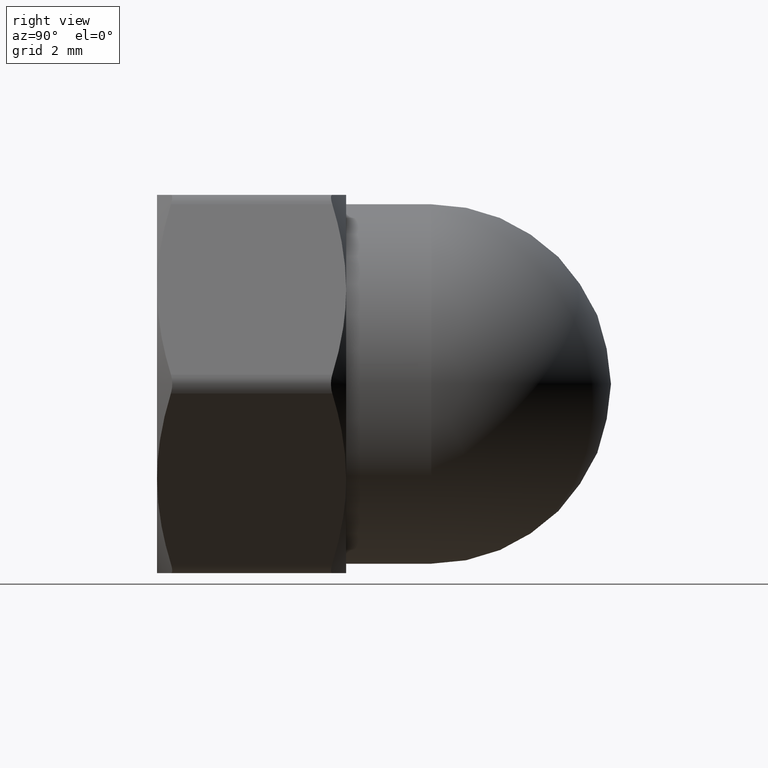
[diagram: clean part render]
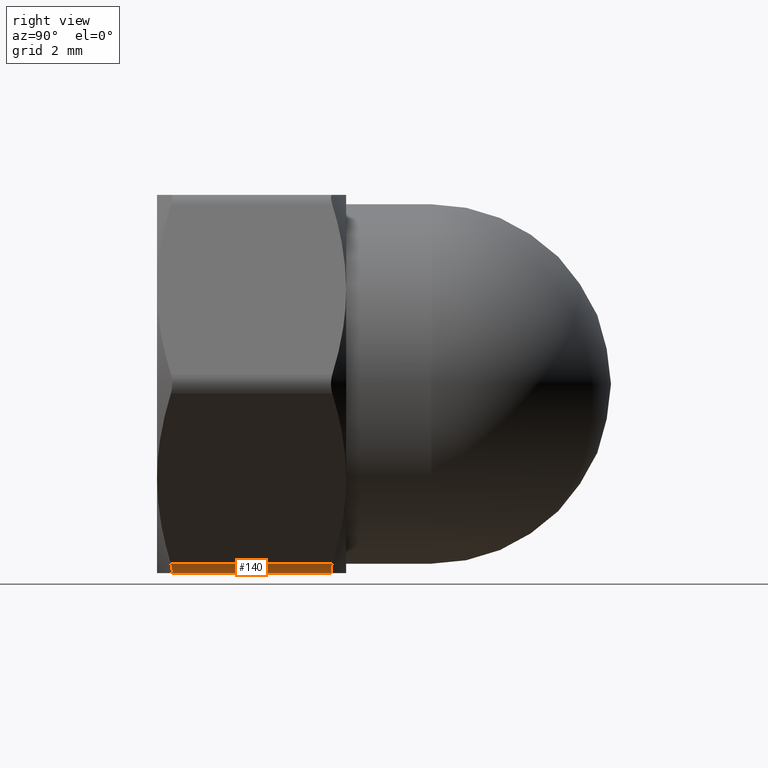
[diagram: same view with one face highlighted and labeled with its STEP entity id]
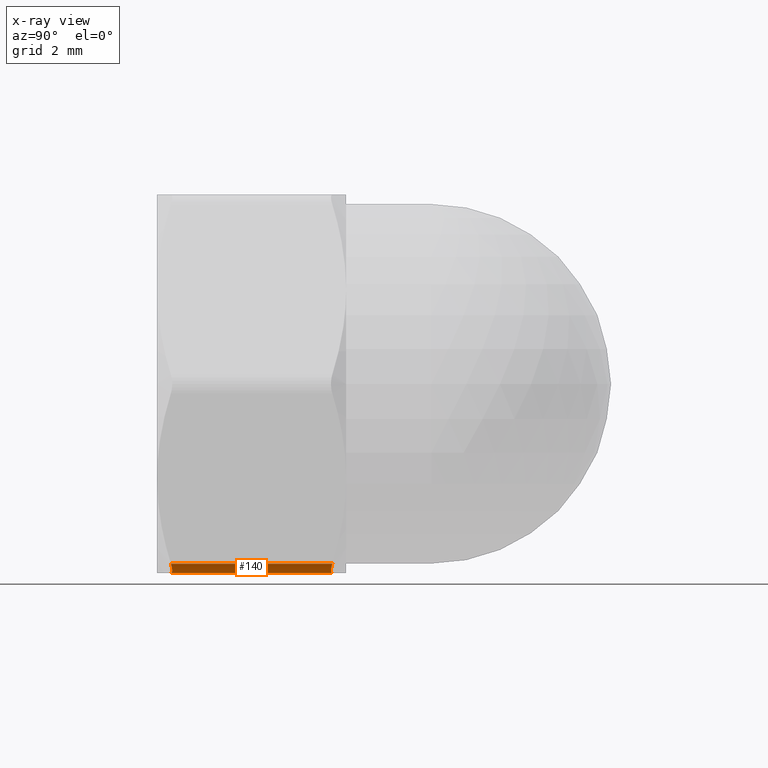
[diagram: x-ray of the same camera — body ghosted, the highlighted face saturated]
A machine part, right view. The second image highlights one B-rep face of the part: STEP entity #140.
The next image is the same camera in x-ray: the body ghosted, the highlighted face saturated — about 0% of this face is hidden behind the body in this view.
In plain terms, the highlighted cylindrical surface (edge-blend (fillet) strip) has radius 0.5 mm, axis along (0, -1, 0).
Its self-contained STEP definition (entity closure, byte-faithful):
#11 = VERTEX_POINT ( 'NONE', #628 ) ;
#21 = AXIS2_PLACEMENT_3D ( 'NONE', #955, #355, #352 ) ;
#61 = VECTOR ( 'NONE', #403, 1000.000000000000000 ) ;
#76 = CARTESIAN_POINT ( 'NONE',  ( 2.598076211353312900, 4.633547796624279500, -4.999999999999999100 ) ) ;
#115 = LINE ( 'NONE', #224, #1197 ) ;
#129 = VERTEX_POINT ( 'NONE', #737 ) ;
#140 = ADVANCED_FACE ( 'NONE', ( #633 ), #906, .T. ) ;
#163 = CARTESIAN_POINT ( 'NONE',  ( 2.772296152499846000, 4.598035946016533900, -4.976852619009042300 ) ) ;
#172 = CARTESIAN_POINT ( 'NONE',  ( 2.988064056856177200, 0.3893592352059666600, -4.824521237254662000 ) ) ;
#178 = CARTESIAN_POINT ( 'NONE',  ( 2.684097962339600400, 0.3893517915824357700, -4.999999999999999100 ) ) ;
#189 = EDGE_CURVE ( 'NONE', #11, #129, #958, .T. ) ;
#224 = CARTESIAN_POINT ( 'NONE',  ( 3.031088913245532500, 5.000000000000000000, -4.750000000000000000 ) ) ;
#330 = ORIENTED_EDGE ( 'NONE', *, *, #1168, .F. ) ;
#352 = DIRECTION ( 'NONE',  ( 0.0000000000000000000, 0.0000000000000000000, -1.000000000000000000 ) ) ;
#355 = DIRECTION ( 'NONE',  ( 0.0000000000000000000, -1.000000000000000000, 0.0000000000000000000 ) ) ;
#357 = CARTESIAN_POINT ( 'NONE',  ( 2.924610477303248900, 4.598116676514346900, -4.888736905000570200 ) ) ;
#376 = ORIENTED_EDGE ( 'NONE', *, *, #189, .F. ) ;
#389 = ORIENTED_EDGE ( 'NONE', *, *, #534, .F. ) ;
#403 = DIRECTION ( 'NONE',  ( 0.0000000000000000000, -1.000000000000000000, 0.0000000000000000000 ) ) ;
#413 = VERTEX_POINT ( 'NONE', #1284 ) ;
#500 = LINE ( 'NONE', #1010, #61 ) ;
#534 = EDGE_CURVE ( 'NONE', #413, #11, #500, .T. ) ;
#552 = CARTESIAN_POINT ( 'NONE',  ( 2.598076211353313800, 0.3664522033757202600, -4.999999999999999100 ) ) ;
#606 = ORIENTED_EDGE ( 'NONE', *, *, #1093, .F. ) ;
#628 = CARTESIAN_POINT ( 'NONE',  ( 2.598076211353313800, 0.3664522033757202600, -4.999999999999999100 ) ) ;
#633 = FACE_OUTER_BOUND ( 'NONE', #888, .T. ) ;
#667 = CARTESIAN_POINT ( 'NONE',  ( 2.771465113497938200, 0.4018833234856941100, -4.977155422018797500 ) ) ;
#737 = CARTESIAN_POINT ( 'NONE',  ( 3.031088913245470400, 0.3664522033757524100, -4.750000000000108400 ) ) ;
#742 = CARTESIAN_POINT ( 'NONE',  ( 2.988078037752468100, 4.610648208421828500, -4.824497021632007300 ) ) ;
#859 = CARTESIAN_POINT ( 'NONE',  ( 2.684125924131984100, 4.610640764794019300, -5.000000000000000000 ) ) ;
#888 = EDGE_LOOP ( 'NONE', ( #330, #606, #376, #389 ) ) ;
#900 = DIRECTION ( 'NONE',  ( -0.0000000000000000000, 1.000000000000000000, -0.0000000000000000000 ) ) ;
#906 = CYLINDRICAL_SURFACE ( 'NONE', #21, 0.5000000000000004400 ) ;
#955 = CARTESIAN_POINT ( 'NONE',  ( 2.598076211353313800, 5.000000000000000000, -4.499999999999999100 ) ) ;
#958 = B_SPLINE_CURVE_WITH_KNOTS ( 'NONE', 3,
 ( #552, #178, #667, #1274, #172, #961 ),
 .UNSPECIFIED., .F., .F.,
 ( 4, 2, 4 ),
 ( 0.0000000000000000000, 0.0002635016616916906700, 0.0005270033233833813300 ),
 .UNSPECIFIED. ) ;
#961 = CARTESIAN_POINT ( 'NONE',  ( 3.031088913245470400, 0.3664522033757524100, -4.750000000000108400 ) ) ;
#986 = VERTEX_POINT ( 'NONE', #1091 ) ;
#1010 = CARTESIAN_POINT ( 'NONE',  ( 2.598076211353313800, 5.000000000000000000, -4.999999999999999100 ) ) ;
#1091 = CARTESIAN_POINT ( 'NONE',  ( 3.031088913245868700, 4.633547796624458900, -4.749999999999419100 ) ) ;
#1093 = EDGE_CURVE ( 'NONE', #129, #986, #115, .T. ) ;
#1168 = EDGE_CURVE ( 'NONE', #986, #413, #1232, .T. ) ;
#1197 = VECTOR ( 'NONE', #900, 1000.000000000000000 ) ;
#1232 = B_SPLINE_CURVE_WITH_KNOTS ( 'NONE', 3,
 ( #1261, #742, #357, #163, #859, #76 ),
 .UNSPECIFIED., .F., .F.,
 ( 4, 2, 4 ),
 ( 1.143701227495981800E-016, 0.0002635016616918632200, 0.0005270033233836120500 ),
 .UNSPECIFIED. ) ;
#1261 = CARTESIAN_POINT ( 'NONE',  ( 3.031088913245868700, 4.633547796624458900, -4.749999999999419100 ) ) ;
#1274 = CARTESIAN_POINT ( 'NONE',  ( 2.923932722703210400, 0.4019640539834248800, -4.889305204383051200 ) ) ;
#1284 = CARTESIAN_POINT ( 'NONE',  ( 2.598076211353312900, 4.633547796624279500, -4.999999999999999100 ) ) ;